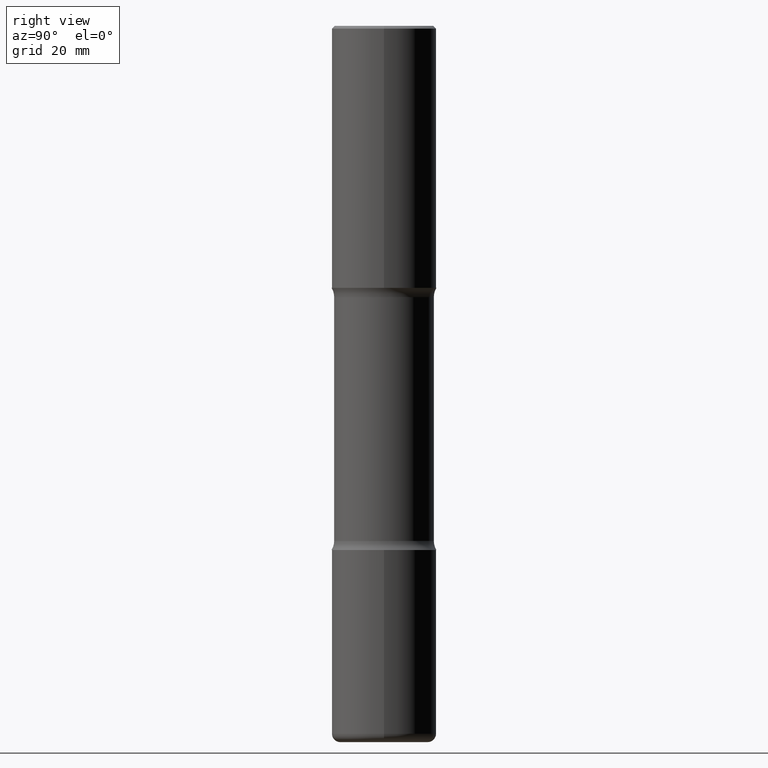
[diagram: clean part render]
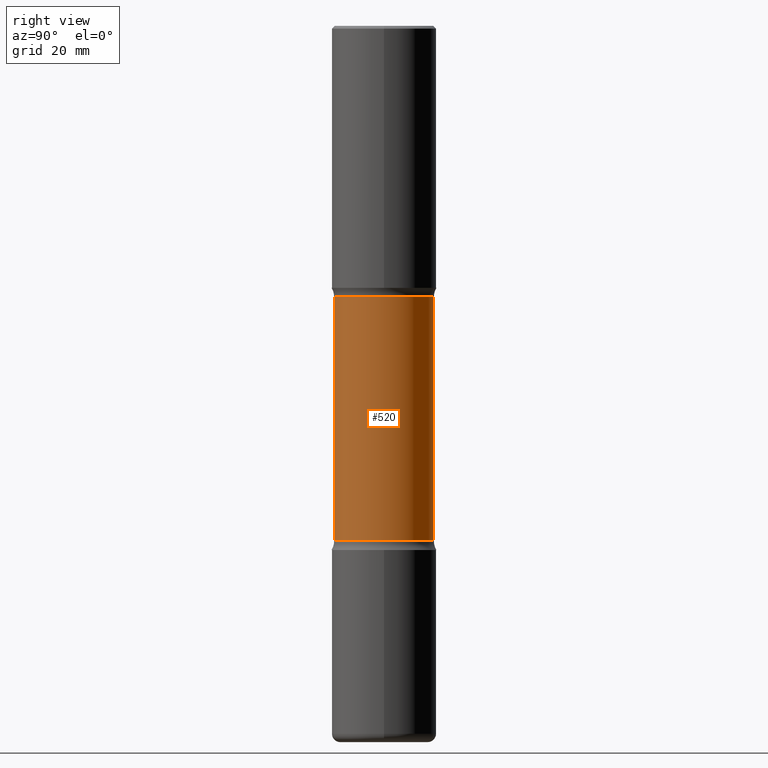
[diagram: same view with one face highlighted and labeled with its STEP entity id]
A machine part, right view. The second image highlights one B-rep face of the part: STEP entity #520.
In plain terms, the highlighted cylindrical surface (partial cylindrical patch) has radius 9.0551 mm, axis along (0, -0, -1).
Its self-contained STEP definition (entity closure, byte-faithful):
#18 = ORIENTED_EDGE ( 'NONE', *, *, #423, .T. ) ;
#24 = AXIS2_PLACEMENT_3D ( 'NONE', #121, #249, #509 ) ;
#36 = DIRECTION ( 'NONE',  ( 6.982962677686265922E-15, 1.000000000000000000, -3.065187089665371661E-15 ) ) ;
#43 = EDGE_CURVE ( 'NONE', #117, #286, #283, .T. ) ;
#65 = CIRCLE ( 'NONE', #75, 0.3565000000000000946 ) ;
#69 = EDGE_LOOP ( 'NONE', ( #18, #93, #445, #271 ) ) ;
#75 = AXIS2_PLACEMENT_3D ( 'NONE', #397, #526, #36 ) ;
#89 = DIRECTION ( 'NONE',  ( 2.497495331405690228E-29, -3.416976393561393039E-15, -1.000000000000000000 ) ) ;
#93 = ORIENTED_EDGE ( 'NONE', *, *, #382, .T. ) ;
#117 = VERTEX_POINT ( 'NONE', #188 ) ;
#121 = CARTESIAN_POINT ( 'NONE',  ( 1.260456410387708500E-28, -1.779139756180870974E-14, -5.125000000000000000 ) ) ;
#124 = LINE ( 'NONE', #557, #384 ) ;
#166 = CARTESIAN_POINT ( 'NONE',  ( -2.445767536205424380E-15, -0.3565000000000177471, -5.124999999999998224 ) ) ;
#173 = CARTESIAN_POINT ( 'NONE',  ( 2.489426194595200956E-15, 0.3564999999999931557, -1.940442723048481977 ) ) ;
#188 = CARTESIAN_POINT ( 'NONE',  ( 2.489426194595243160E-15, 0.3564999999999870495, -3.684557276951521576 ) ) ;
#233 = CARTESIAN_POINT ( 'NONE',  ( 9.007065127906209971E-29, -1.286943878087476446E-14, -3.684557276951520688 ) ) ;
#244 = CYLINDRICAL_SURFACE ( 'NONE', #24, 0.3564999999999999281 ) ;
#249 = DIRECTION ( 'NONE',  ( 2.497495331405690228E-29, -3.416976393561393039E-15, -1.000000000000000000 ) ) ;
#253 = AXIS2_PLACEMENT_3D ( 'NONE', #233, #399, #489 ) ;
#271 = ORIENTED_EDGE ( 'NONE', *, *, #383, .F. ) ;
#283 = CIRCLE ( 'NONE', #253, 0.3564999999999998725 ) ;
#286 = VERTEX_POINT ( 'NONE', #297 ) ;
#287 = FACE_OUTER_BOUND ( 'NONE', #69, .T. ) ;
#297 = CARTESIAN_POINT ( 'NONE',  ( -2.509227142684845959E-15, -0.3565000000000126956, -3.684557276951519356 ) ) ;
#342 = DIRECTION ( 'NONE',  ( 2.497495331405690228E-29, -3.416976393561393039E-15, -1.000000000000000000 ) ) ;
#366 = VERTEX_POINT ( 'NONE', #506 ) ;
#382 = EDGE_CURVE ( 'NONE', #366, #286, #472, .T. ) ;
#383 = EDGE_CURVE ( 'NONE', #398, #117, #124, .T. ) ;
#384 = VECTOR ( 'NONE', #89, 39.37007874015748143 ) ;
#397 = CARTESIAN_POINT ( 'NONE',  ( 4.651147172096649847E-29, -6.909840522521219359E-15, -1.940442723048480866 ) ) ;
#398 = VERTEX_POINT ( 'NONE', #173 ) ;
#399 = DIRECTION ( 'NONE',  ( 2.497495331405690228E-29, -3.416976393561393039E-15, -1.000000000000000000 ) ) ;
#423 = EDGE_CURVE ( 'NONE', #398, #366, #65, .T. ) ;
#445 = ORIENTED_EDGE ( 'NONE', *, *, #43, .F. ) ;
#472 = LINE ( 'NONE', #166, #547 ) ;
#489 = DIRECTION ( 'NONE',  ( 6.982962677686265922E-15, 1.000000000000000000, -3.065187089665373633E-15 ) ) ;
#506 = CARTESIAN_POINT ( 'NONE',  ( -2.509227142684893291E-15, -0.3565000000000069780, -1.940442723048479756 ) ) ;
#509 = DIRECTION ( 'NONE',  ( 6.982962677686265922E-15, 1.000000000000000000, -3.065187089665373239E-15 ) ) ;
#520 = ADVANCED_FACE ( 'NONE', ( #287 ), #244, .T. ) ;
#526 = DIRECTION ( 'NONE',  ( 2.497495331405690228E-29, -3.416976393561393039E-15, -1.000000000000000000 ) ) ;
#547 = VECTOR ( 'NONE', #342, 39.37007874015748143 ) ;
#557 = CARTESIAN_POINT ( 'NONE',  ( 2.489426194595279448E-15, 0.3564999999999821090, -5.125000000000000888 ) ) ;